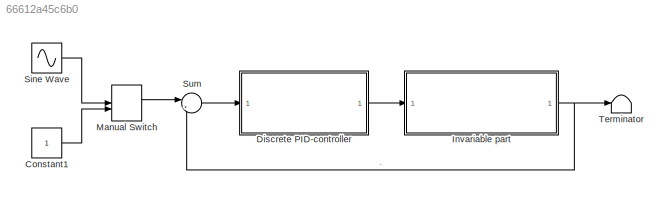
MODEL slx_66612a45c6b0
KIND model
CONFIG AbsTol = auto
CONFIG EnableMultiTasking = off
CONFIG FixedStep = auto
CONFIG MaxStep = 0.1
CONFIG MinStep = auto
CONFIG RelTol = 1e-4
CONFIG SampleTimeConstraint = Unconstrained
CONFIG SolverName = ode23t
CONFIG StartTime = 0.0
CONFIG StopTime = 10
BLOCK [Constant] Constant1
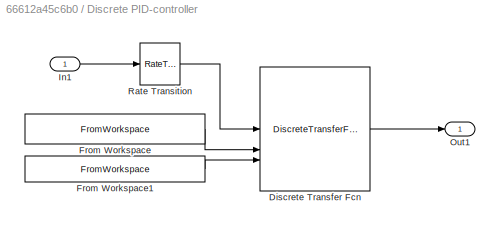
BLOCK [SubSystem] Discrete PID-controller
BLOCK [DiscreteTransferFcn] Discrete PID-controller/Discrete Transfer Fcn
  Denominator = [1	-1.88948213939774	0.889482139397741]
  DenominatorSource = Input port
  InputPortMap = u0,p1,p3
  Numerator = [8.37168601608560	-16.7038880997959	8.33224884518259]
  NumeratorSource = Input port
  a0EqualsOne = on
BLOCK [FromWorkspace] Discrete PID-controller/From Workspace
  SampleTime = -1
  VariableName = [0, RegulatorDiscreteFunc.Numerator{1, 1}]
BLOCK [FromWorkspace] Discrete PID-controller/From Workspace1
  SampleTime = -1
  VariableName = [0, RegulatorDiscreteFunc.Denominator{1, 1}]
BLOCK [Inport] Discrete PID-controller/In1
BLOCK [Outport] Discrete PID-controller/Out1
BLOCK [RateTransition] Discrete PID-controller/Rate Transition
  OutPortSampleTime = Ts
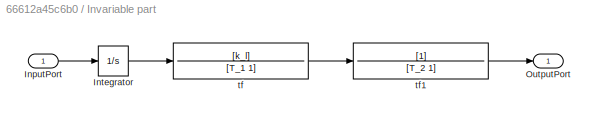
BLOCK [SubSystem] Invariable part
BLOCK [Inport] Invariable part/InputPort
BLOCK [Integrator] Invariable part/Integrator
BLOCK [Outport] Invariable part/OutputPort
BLOCK [TransferFcn] Invariable part/tf
  Denominator = [T_1 1]
  Numerator = [k_l]
BLOCK [TransferFcn] Invariable part/tf1
  Denominator = [T_2 1]
BLOCK [ManualSwitch] Manual Switch
BLOCK [Sin] Sine Wave
  Amplitude = 50
  Frequency = 0.5
  SampleTime = 0
BLOCK [Sum] Sum
  Inputs = |+-
BLOCK [Terminator] Terminator
LINE Constant1:1 -> Manual Switch:2
LINE Discrete PID-controller/Discrete Transfer Fcn:1 -> Discrete PID-controller/Out1:1
LINE Discrete PID-controller/From Workspace1:1 -> Discrete PID-controller/Discrete Transfer Fcn:3
LINE Discrete PID-controller/From Workspace:1 -> Discrete PID-controller/Discrete Transfer Fcn:2
LINE Discrete PID-controller/In1:1 -> Discrete PID-controller/Rate Transition:1
LINE Discrete PID-controller/Rate Transition:1 -> Discrete PID-controller/Discrete Transfer Fcn:1
LINE Discrete PID-controller:1 -> Invariable part:1
LINE Invariable part/InputPort:1 -> Invariable part/Integrator:1
LINE Invariable part/Integrator:1 -> Invariable part/tf:1
LINE Invariable part/tf1:1 -> Invariable part/OutputPort:1
LINE Invariable part/tf:1 -> Invariable part/tf1:1
NET Invariable part:1 -> Sum:2, Terminator:1
LINE Manual Switch:1 -> Sum:1
LINE Sine Wave:1 -> Manual Switch:1
LINE Sum:1 -> Discrete PID-controller:1
note: NET lines group one-source signal fan-out (src -> all destinations, sorted); 1:1 wires keep LINE
